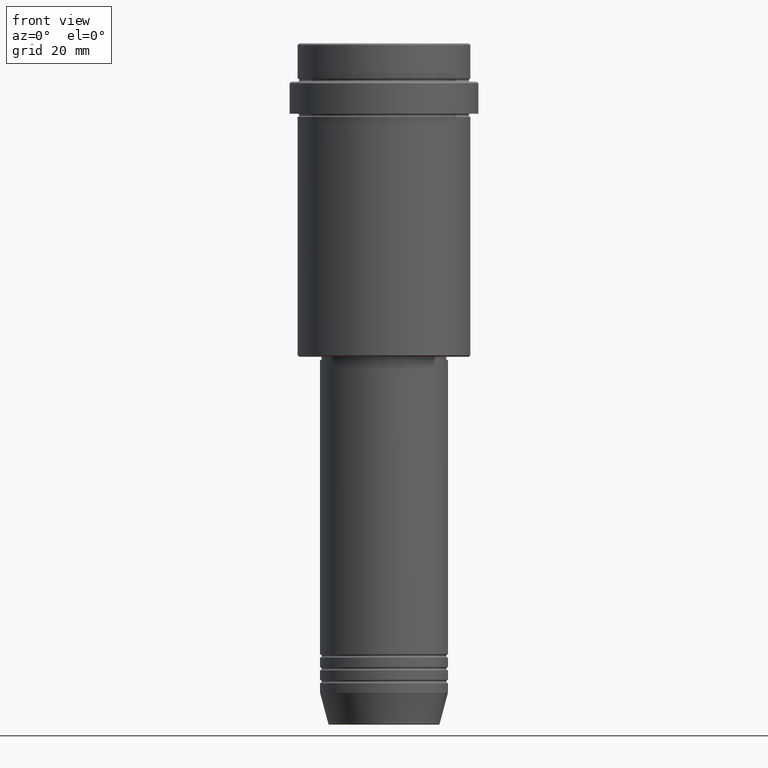
[diagram: clean part render]
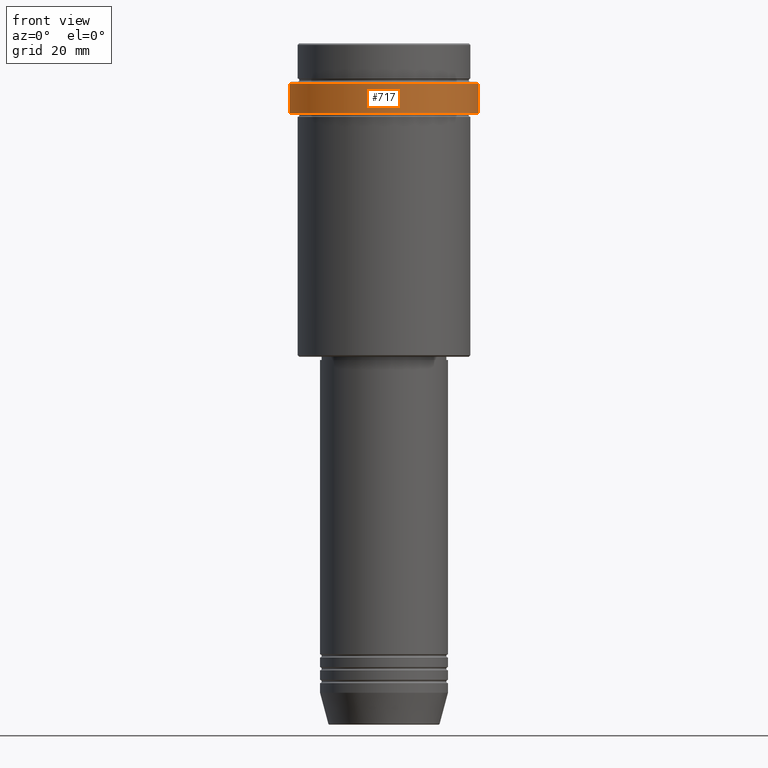
[diagram: same view with one face highlighted and labeled with its STEP entity id]
A machine part, front view. The second image highlights one B-rep face of the part: STEP entity #717.
In plain terms, the highlighted cylindrical surface (partial cylindrical patch) has radius 29.5 mm, axis along (-0, -0, 1).
Its self-contained STEP definition (entity closure, byte-faithful):
#13 = EDGE_CURVE ( 'NONE', #508, #558, #763, .T. ) ;
#15 = DIRECTION ( 'NONE',  ( -0.000000000000000000, -0.000000000000000000, 1.000000000000000000 ) ) ;
#17 = ORIENTED_EDGE ( 'NONE', *, *, #1297, .F. ) ;
#58 = EDGE_LOOP ( 'NONE', ( #17, #1109, #655, #1382 ) ) ;
#65 = VECTOR ( 'NONE', #15, 1000.000000000000000 ) ;
#81 = DIRECTION ( 'NONE',  ( -0.000000000000000000, -0.000000000000000000, 1.000000000000000000 ) ) ;
#111 = AXIS2_PLACEMENT_3D ( 'NONE', #434, #573, #325 ) ;
#121 = CYLINDRICAL_SURFACE ( 'NONE', #111, 29.50000000000000000 ) ;
#168 = CARTESIAN_POINT ( 'NONE',  ( 29.49999999999999645, 0.000000000000000000, -22.00000000000000711 ) ) ;
#209 = CARTESIAN_POINT ( 'NONE',  ( 0.000000000000000000, 0.000000000000000000, -12.50000000000003197 ) ) ;
#223 = CIRCLE ( 'NONE', #585, 29.50000000000000000 ) ;
#263 = CARTESIAN_POINT ( 'NONE',  ( -29.49999999999999645, 3.612708057484690815E-15, -22.00000000000000711 ) ) ;
#325 = DIRECTION ( 'NONE',  ( 1.000000000000000000, 0.000000000000000000, 0.000000000000000000 ) ) ;
#387 = CARTESIAN_POINT ( 'NONE',  ( -29.50000000000000000, 3.612708057484691604E-15, 0.000000000000000000 ) ) ;
#434 = CARTESIAN_POINT ( 'NONE',  ( 0.000000000000000000, 0.000000000000000000, 0.000000000000000000 ) ) ;
#492 = DIRECTION ( 'NONE',  ( -0.000000000000000000, -0.000000000000000000, 1.000000000000000000 ) ) ;
#508 = VERTEX_POINT ( 'NONE', #168 ) ;
#527 = AXIS2_PLACEMENT_3D ( 'NONE', #1058, #81, #1175 ) ;
#541 = EDGE_CURVE ( 'NONE', #736, #508, #1148, .T. ) ;
#558 = VERTEX_POINT ( 'NONE', #646 ) ;
#573 = DIRECTION ( 'NONE',  ( -0.000000000000000000, -0.000000000000000000, 1.000000000000000000 ) ) ;
#585 = AXIS2_PLACEMENT_3D ( 'NONE', #209, #747, #1103 ) ;
#592 = LINE ( 'NONE', #387, #1009 ) ;
#630 = EDGE_CURVE ( 'NONE', #558, #1112, #223, .T. ) ;
#646 = CARTESIAN_POINT ( 'NONE',  ( 29.50000000000000000, 0.000000000000000000, -12.50000000000003197 ) ) ;
#655 = ORIENTED_EDGE ( 'NONE', *, *, #13, .T. ) ;
#717 = ADVANCED_FACE ( 'NONE', ( #1408 ), #121, .T. ) ;
#736 = VERTEX_POINT ( 'NONE', #263 ) ;
#747 = DIRECTION ( 'NONE',  ( 0.000000000000000000, 0.000000000000000000, -1.000000000000000000 ) ) ;
#763 = LINE ( 'NONE', #1213, #65 ) ;
#1009 = VECTOR ( 'NONE', #492, 1000.000000000000000 ) ;
#1058 = CARTESIAN_POINT ( 'NONE',  ( 0.000000000000000000, 0.000000000000000000, -22.00000000000000711 ) ) ;
#1103 = DIRECTION ( 'NONE',  ( 1.000000000000000000, 0.000000000000000000, 0.000000000000000000 ) ) ;
#1109 = ORIENTED_EDGE ( 'NONE', *, *, #541, .T. ) ;
#1112 = VERTEX_POINT ( 'NONE', #1230 ) ;
#1148 = CIRCLE ( 'NONE', #527, 29.49999999999999645 ) ;
#1175 = DIRECTION ( 'NONE',  ( 1.000000000000000000, 0.000000000000000000, 0.000000000000000000 ) ) ;
#1213 = CARTESIAN_POINT ( 'NONE',  ( 29.50000000000000000, 0.000000000000000000, 0.000000000000000000 ) ) ;
#1230 = CARTESIAN_POINT ( 'NONE',  ( -29.50000000000000000, 3.612708057484691604E-15, -12.50000000000003197 ) ) ;
#1297 = EDGE_CURVE ( 'NONE', #736, #1112, #592, .T. ) ;
#1382 = ORIENTED_EDGE ( 'NONE', *, *, #630, .T. ) ;
#1408 = FACE_OUTER_BOUND ( 'NONE', #58, .T. ) ;